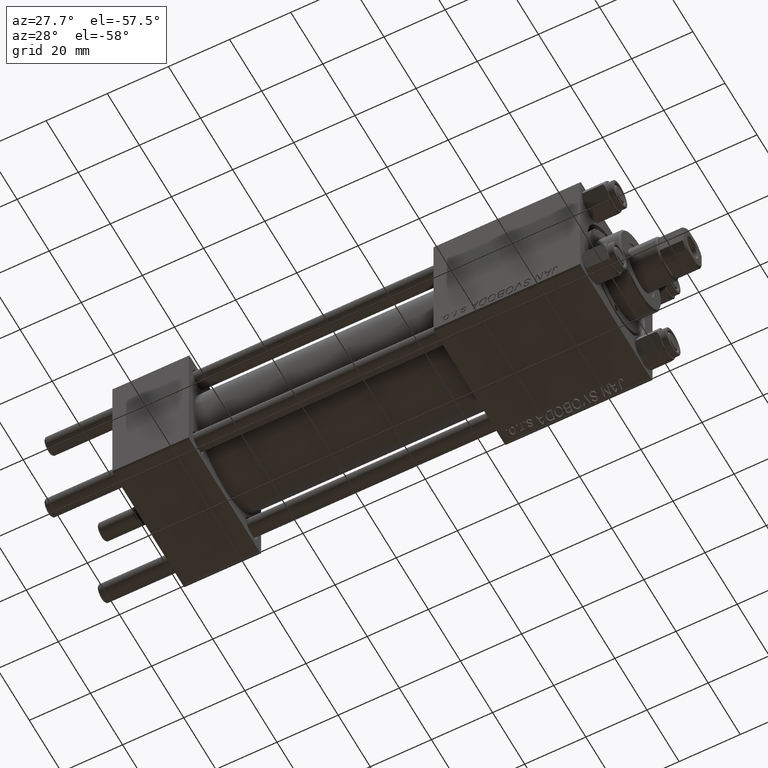
[diagram: clean part render]
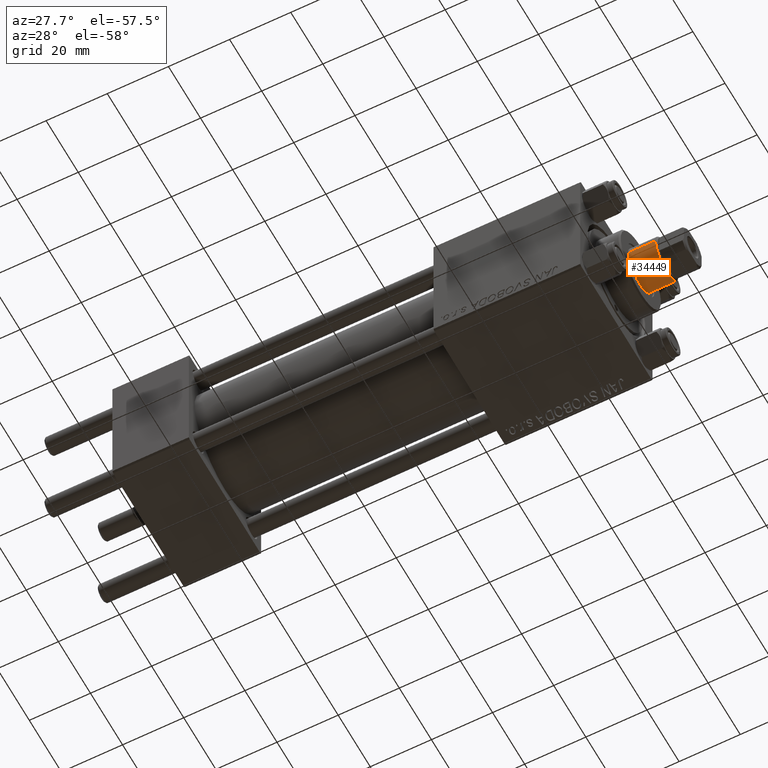
[diagram: same view with one face highlighted and labeled with its STEP entity id]
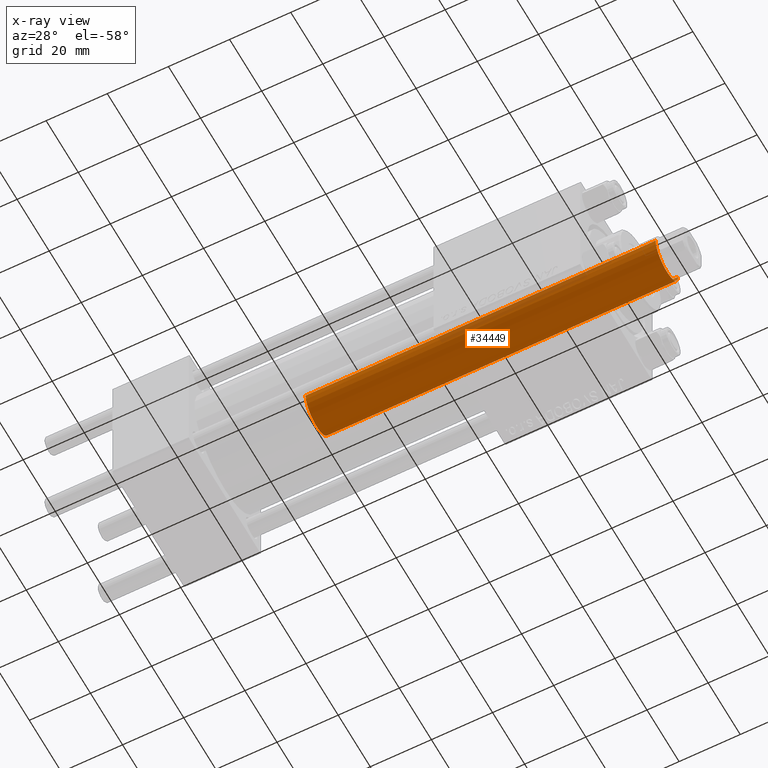
[diagram: x-ray of the same camera — body ghosted, the highlighted face saturated]
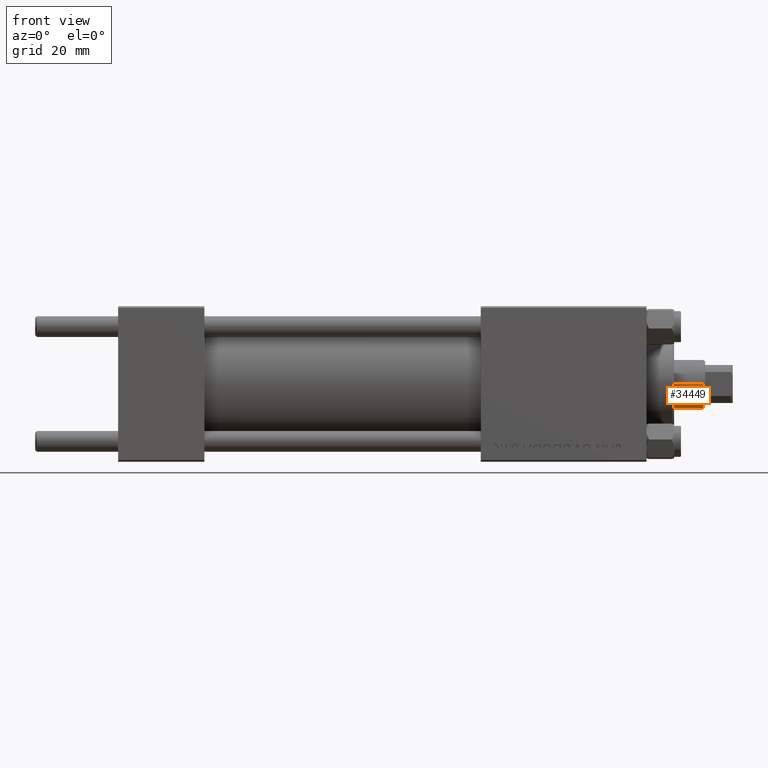
[diagram: same view with one face highlighted and labeled with its STEP entity id]
A machine part, auxiliary view. The second image highlights one B-rep face of the part: STEP entity #34449.
The next image is the same camera in x-ray: the body ghosted, the highlighted face saturated — about 6% of this face is hidden behind the body in this view.
A second angle (front view) of the same face is appended — the face is thin or edge-on in the first view.
In plain terms, the highlighted cylindrical surface (edge-blend (fillet) strip) has radius 7 mm, axis along (-1, 0, 0).
Its self-contained STEP definition (entity closure, byte-faithful):
#1268 = EDGE_CURVE ( 'NONE', #13997, #5826, #5261, .T. ) ;
#2957 = EDGE_LOOP ( 'NONE', ( #28813, #17316, #23910, #42974 ) ) ;
#3746 = EDGE_CURVE ( 'NONE', #5826, #33467, #34483, .T. ) ;
#4613 = CARTESIAN_POINT ( 'NONE',  ( 0.000000000000000000, 0.000000000000000000, 144.4999999999999716 ) ) ;
#5261 = CIRCLE ( 'NONE', #21367, 7.000000000000000000 ) ;
#5826 = VERTEX_POINT ( 'NONE', #45177 ) ;
#5981 = DIRECTION ( 'NONE',  ( -0.000000000000000000, -0.000000000000000000, -1.000000000000000000 ) ) ;
#8780 = CYLINDRICAL_SURFACE ( 'NONE', #19567, 7.000000000000000000 ) ;
#9034 = FACE_OUTER_BOUND ( 'NONE', #2957, .T. ) ;
#10135 = CARTESIAN_POINT ( 'NONE',  ( -7.000000000000000000, 0.000000000000000000, 30.00000000000000000 ) ) ;
#11489 = DIRECTION ( 'NONE',  ( -0.000000000000000000, -0.000000000000000000, -1.000000000000000000 ) ) ;
#11566 = LINE ( 'NONE', #26988, #28991 ) ;
#12061 = DIRECTION ( 'NONE',  ( 1.000000000000000000, 0.000000000000000000, 0.000000000000000000 ) ) ;
#12240 = CARTESIAN_POINT ( 'NONE',  ( 7.000000000000000000, 8.572527594031473190E-16, 145.0000000000000284 ) ) ;
#13997 = VERTEX_POINT ( 'NONE', #25391 ) ;
#15115 = EDGE_CURVE ( 'NONE', #13997, #42837, #11566, .T. ) ;
#17316 = ORIENTED_EDGE ( 'NONE', *, *, #3746, .T. ) ;
#19567 = AXIS2_PLACEMENT_3D ( 'NONE', #43927, #5981, #33021 ) ;
#20023 = DIRECTION ( 'NONE',  ( 1.000000000000000000, 0.000000000000000000, 0.000000000000000000 ) ) ;
#21333 = CIRCLE ( 'NONE', #49616, 7.000000000000000000 ) ;
#21367 = AXIS2_PLACEMENT_3D ( 'NONE', #4613, #40255, #20023 ) ;
#23910 = ORIENTED_EDGE ( 'NONE', *, *, #43322, .T. ) ;
#25391 = CARTESIAN_POINT ( 'NONE',  ( -7.000000000000000000, 0.000000000000000000, 144.4999999999999716 ) ) ;
#26232 = CARTESIAN_POINT ( 'NONE',  ( 7.000000000000000000, 8.572527594031473190E-16, 30.00000000000000000 ) ) ;
#26988 = CARTESIAN_POINT ( 'NONE',  ( -7.000000000000000000, 0.000000000000000000, 145.0000000000000284 ) ) ;
#28813 = ORIENTED_EDGE ( 'NONE', *, *, #1268, .T. ) ;
#28991 = VECTOR ( 'NONE', #46217, 1000.000000000000000 ) ;
#33021 = DIRECTION ( 'NONE',  ( -1.000000000000000000, 0.000000000000000000, 0.000000000000000000 ) ) ;
#33467 = VERTEX_POINT ( 'NONE', #26232 ) ;
#33578 = VECTOR ( 'NONE', #11489, 1000.000000000000000 ) ;
#34449 = ADVANCED_FACE ( 'NONE', ( #9034 ), #8780, .T. ) ;
#34483 = LINE ( 'NONE', #12240, #33578 ) ;
#35055 = DIRECTION ( 'NONE',  ( 0.000000000000000000, 0.000000000000000000, 1.000000000000000000 ) ) ;
#40255 = DIRECTION ( 'NONE',  ( 0.000000000000000000, 0.000000000000000000, -1.000000000000000000 ) ) ;
#42837 = VERTEX_POINT ( 'NONE', #10135 ) ;
#42974 = ORIENTED_EDGE ( 'NONE', *, *, #15115, .F. ) ;
#43322 = EDGE_CURVE ( 'NONE', #33467, #42837, #21333, .T. ) ;
#43927 = CARTESIAN_POINT ( 'NONE',  ( 0.000000000000000000, 0.000000000000000000, 145.0000000000000284 ) ) ;
#45177 = CARTESIAN_POINT ( 'NONE',  ( 7.000000000000000000, 8.572527594031473190E-16, 144.4999999999999716 ) ) ;
#46217 = DIRECTION ( 'NONE',  ( -0.000000000000000000, -0.000000000000000000, -1.000000000000000000 ) ) ;
#46457 = CARTESIAN_POINT ( 'NONE',  ( 0.000000000000000000, 0.000000000000000000, 30.00000000000000000 ) ) ;
#49616 = AXIS2_PLACEMENT_3D ( 'NONE', #46457, #35055, #12061 ) ;